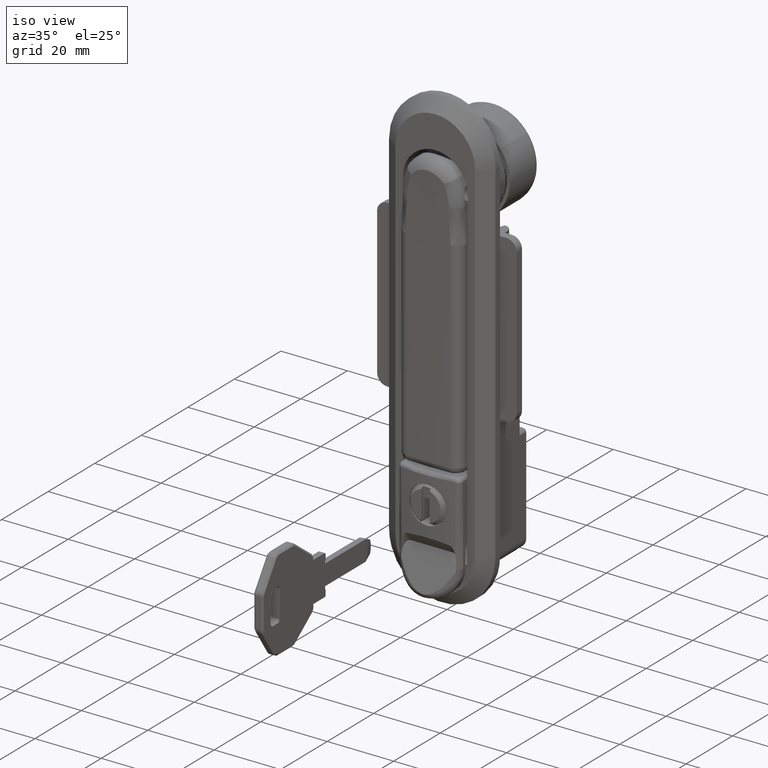
[diagram: clean part render]
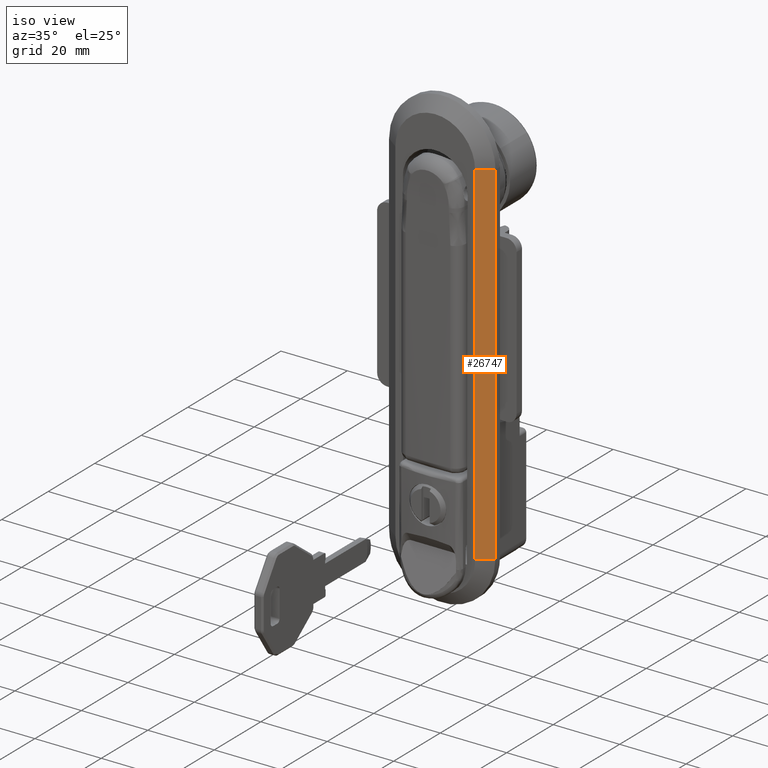
[diagram: same view with one face highlighted and labeled with its STEP entity id]
A machine part, iso view. The second image highlights one B-rep face of the part: STEP entity #26747.
In plain terms, the highlighted face is a freeform B-spline surface patch.
Its self-contained STEP definition (entity closure, byte-faithful):
#26712=CARTESIAN_POINT('',(-1.850150005815151,-16.199799990862950,-103.494696809343590));
#26713=CARTESIAN_POINT('',(-5.149850074656816,-11.800199899074061,-103.494696809343590));
#26714=CARTESIAN_POINT('',(-1.850150005819956,-16.199799990866548,13.094702495715250));
#26715=CARTESIAN_POINT('',(-5.149850074661620,-11.800199899077660,13.094702495715250));
#26716=B_SPLINE_SURFACE_WITH_KNOTS('',1,1,((#26712,#26714),(#26713,#26715)),.UNSPECIFIED.,.F.,.F.,.U.,(2,2),(2,2),(0.0,5.499500114736108),(0.0,116.589399305058900),.UNSPECIFIED.);
#26717=CARTESIAN_POINT('',(-5.000000000001080,-11.999999998607040,-98.199999999949000));
#26718=VERTEX_POINT('',#26717);
#26719=CARTESIAN_POINT('',(-2.000000000001110,-15.999999998607001,-98.199999999949299));
#26720=VERTEX_POINT('',#26719);
#26721=CARTESIAN_POINT('',(-5.000000000001080,-11.999999998607040,-98.199999999949000));
#26722=CARTESIAN_POINT('',(-2.000000000001110,-15.999999998607001,-98.199999999949299));
#26723=QUASI_UNIFORM_CURVE('',1,(#26721,#26722),.UNSPECIFIED.,.F.,.U.);
#26724=EDGE_CURVE('',#26718,#26720,#26723,.T.);
#26725=ORIENTED_EDGE('',*,*,#26724,.T.);
#26726=CARTESIAN_POINT('',(-2.000000000001110,-15.999999998615699,7.800000000037469));
#26727=VERTEX_POINT('',#26726);
#26728=CARTESIAN_POINT('',(-2.000000000001110,-15.999999998615699,7.800000000037469));
#26729=CARTESIAN_POINT('',(-2.000000000001110,-15.999999998607001,-98.199999999949299));
#26730=QUASI_UNIFORM_CURVE('',1,(#26728,#26729),.UNSPECIFIED.,.F.,.U.);
#26731=EDGE_CURVE('',#26727,#26720,#26730,.T.);
#26732=ORIENTED_EDGE('',*,*,#26731,.F.);
#26733=CARTESIAN_POINT('',(-5.000000000001080,-11.999999998615840,7.800000000037819));
#26734=VERTEX_POINT('',#26733);
#26735=CARTESIAN_POINT('',(-2.000000000001110,-15.999999998615699,7.800000000037469));
#26736=CARTESIAN_POINT('',(-5.000000000001080,-11.999999998615840,7.800000000037819));
#26737=QUASI_UNIFORM_CURVE('',1,(#26735,#26736),.UNSPECIFIED.,.F.,.U.);
#26738=EDGE_CURVE('',#26727,#26734,#26737,.T.);
#26739=ORIENTED_EDGE('',*,*,#26738,.T.);
#26740=CARTESIAN_POINT('',(-5.000000000001080,-11.999999998607040,-98.199999999949000));
#26741=CARTESIAN_POINT('',(-5.000000000001080,-11.999999998615840,7.800000000037819));
#26742=QUASI_UNIFORM_CURVE('',1,(#26740,#26741),.UNSPECIFIED.,.F.,.U.);
#26743=EDGE_CURVE('',#26718,#26734,#26742,.T.);
#26744=ORIENTED_EDGE('',*,*,#26743,.F.);
#26745=EDGE_LOOP('',(#26725,#26732,#26739,#26744));
#26746=FACE_OUTER_BOUND('',#26745,.T.);
#26747=ADVANCED_FACE('',(#26746),#26716,.F.);